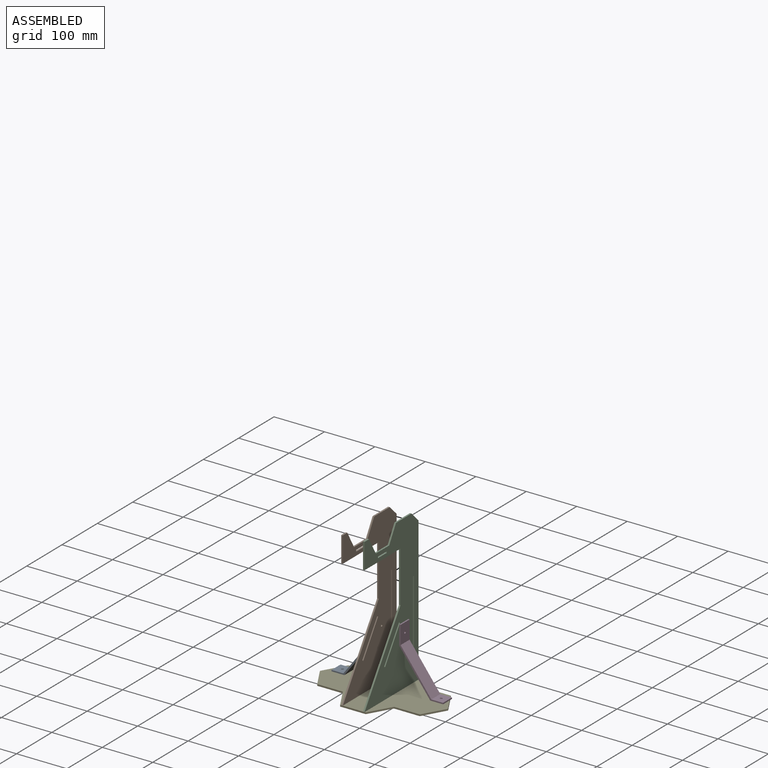
[diagram: assembled view]
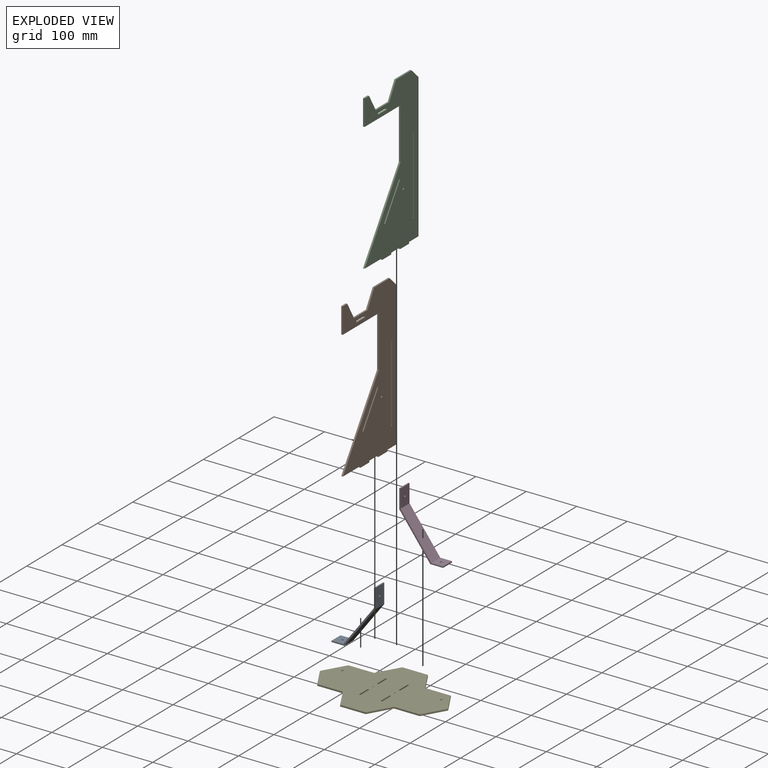
[diagram: exploded view]
GUIDED TOUR — MATED ASSEMBLY (Onshape document 4123c922d0677a790cdd288b, AutoMate assembly 4123c922d0677a790cdd288b_f559b893877737e25ff7922c_e95f32692bd4e4545a115b52_default)

This assembly has 5 components, labeled P0..P4 below (a component is one placed occurrence of a part; the same part can appear more than once), held together by 4 mates. A mate is a constraint between two components; its type names the relative motion it leaves free:
  FASTENED — locks the two components together rigidly (no relative motion).
Axis/direction vectors are unit vectors and 'through' points are millimeter coordinates, both in the assembly's world frame.

MATES
  1. FASTENED "Fastened 2": P2 <-> P4, direction (0.000, 0.000, -1.000) through (-218.53, -173.76, -148.30) mm
  2. FASTENED "Fastened 3": P3 <-> P4, direction (0.000, 0.000, -1.000) through (-142.33, -151.72, -148.30) mm
  3. FASTENED "Fastened 4": P0 <-> P4, direction (0.000, 0.000, -1.000) through (-337.91, -151.72, -148.30) mm
  4. FASTENED "Fastened 1": P1 <-> P4, direction (0.000, 0.000, -1.000) through (-261.71, -173.76, -148.30) mm

ASSEMBLY ORDER
  1. P4 — the base component [order verified]
  2. P0 [order verified]
  3. P3 [order verified]
  4. P1 [order verified]
  5. P2 [order verified]
Order-tag legend:
  [order verified] — this step's position reverses a verified removal order: the component was checked to insert without passing through the ones already placed.

Of the 5 components, 2 carry the full construction recipe — the FeatureScript program that regenerates the part's solid from scratch; the rest are supplied as boundary geometry only.
Each toured component is shown spotlighted twice — in the assembled view, then in the exploded view, where a leader line traces a displaced component back to its assembled socket (saturated green if recipe-attached, orange if geometry-only; every other component desaturated gray) — followed by its recipe or geometry summary and the mates that hold it.
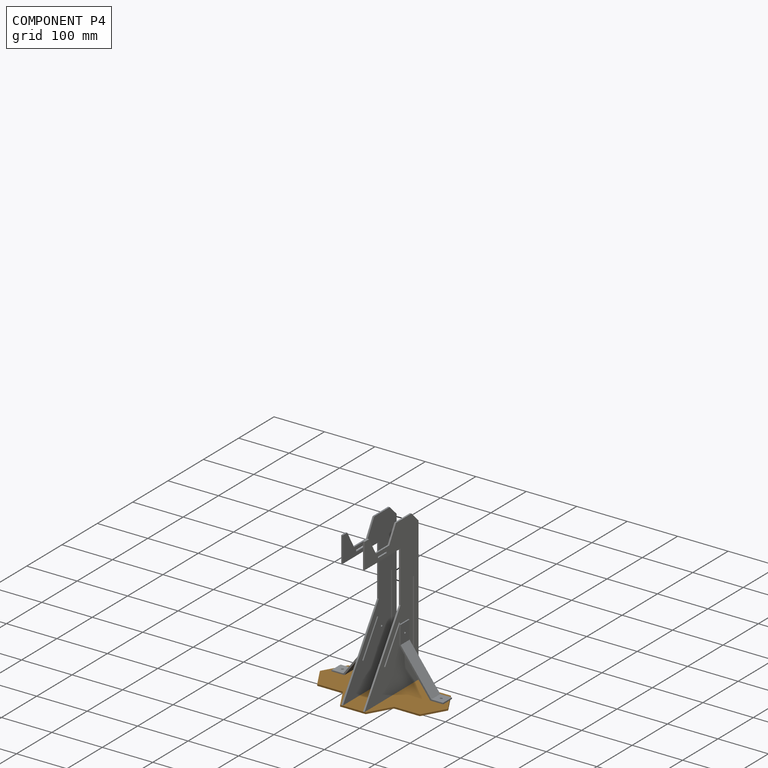
[diagram: component P4 — assembled]
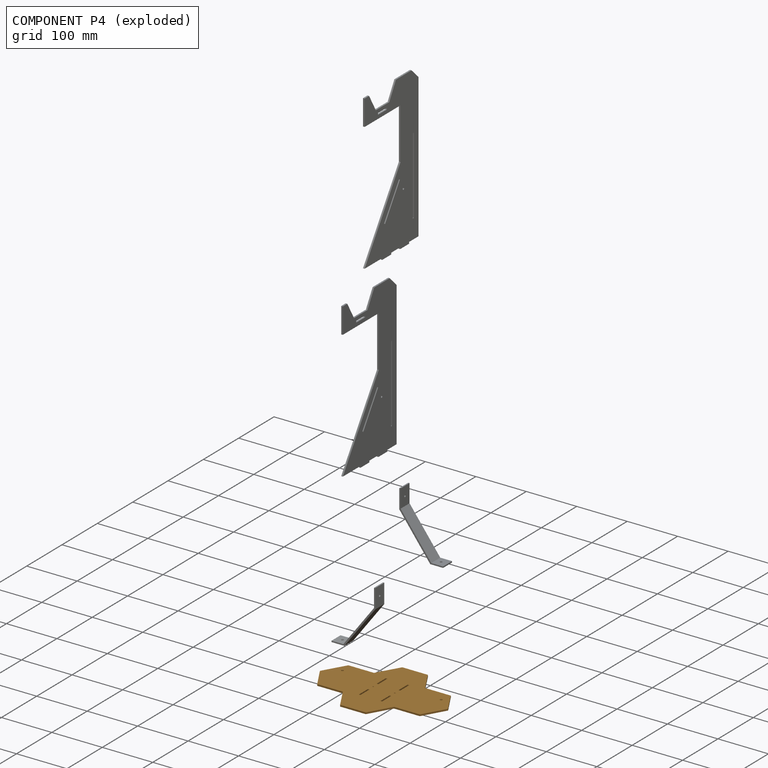
[diagram: component P4 — exploded]
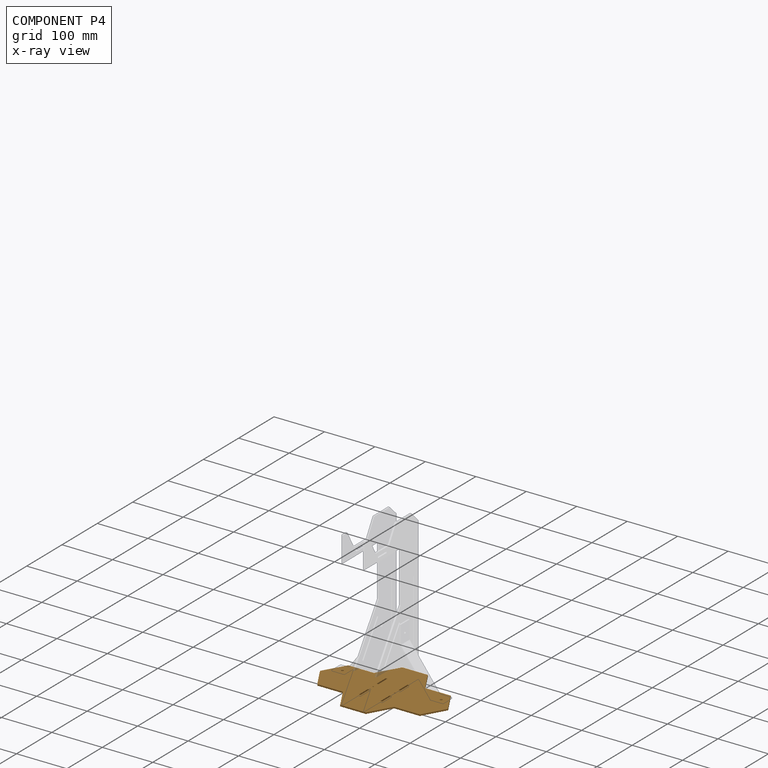
[diagram: component P4 — x-ray view]
COMPONENT P4 — geometry summary (no construction recipe available for this part):
  bounding box: 254.0 x 176.0 x 3.2 mm
  B-rep topology: 1 solid, 36 faces, 208 edges
  volume: 84001 mm^3 (59% of its bounding box)
  symmetry: 2-fold rotationally symmetric about the x axis; 2-fold rotationally symmetric about the y axis; 2-fold rotationally symmetric about the z axis; mirror-symmetric across its x mid-plane, y mid-plane, z mid-plane
Held by: FASTENED mate "Fastened 2" to P2; FASTENED mate "Fastened 3" to P3; FASTENED mate "Fastened 4" to P0; FASTENED mate "Fastened 1" to P1.
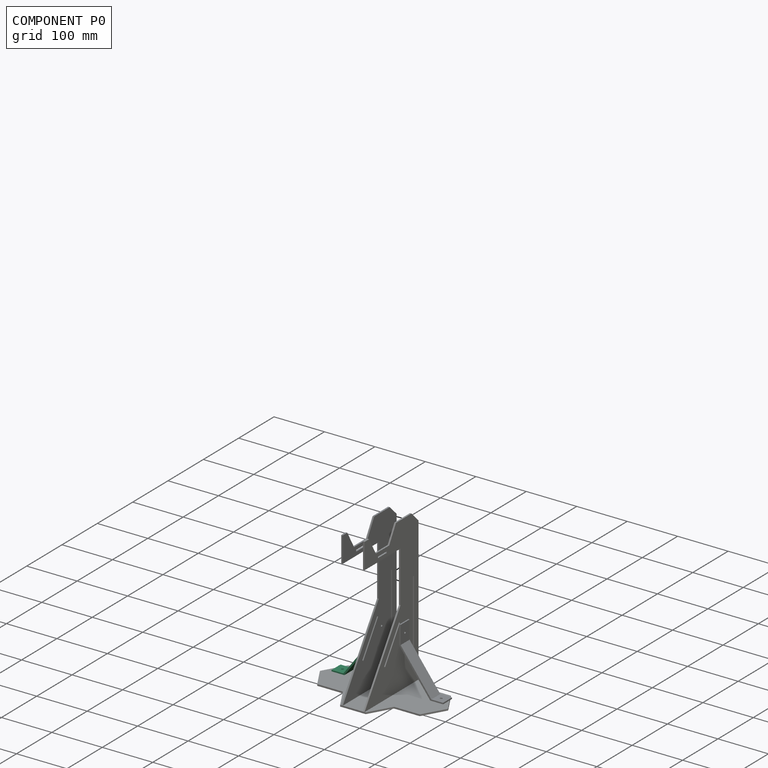
[diagram: component P0 — assembled]
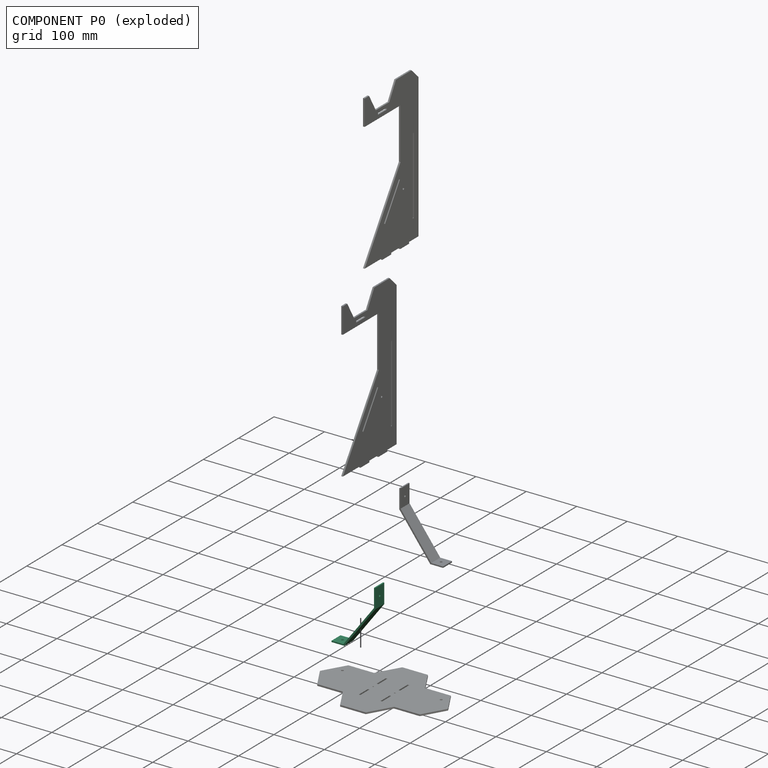
[diagram: component P0 — exploded]
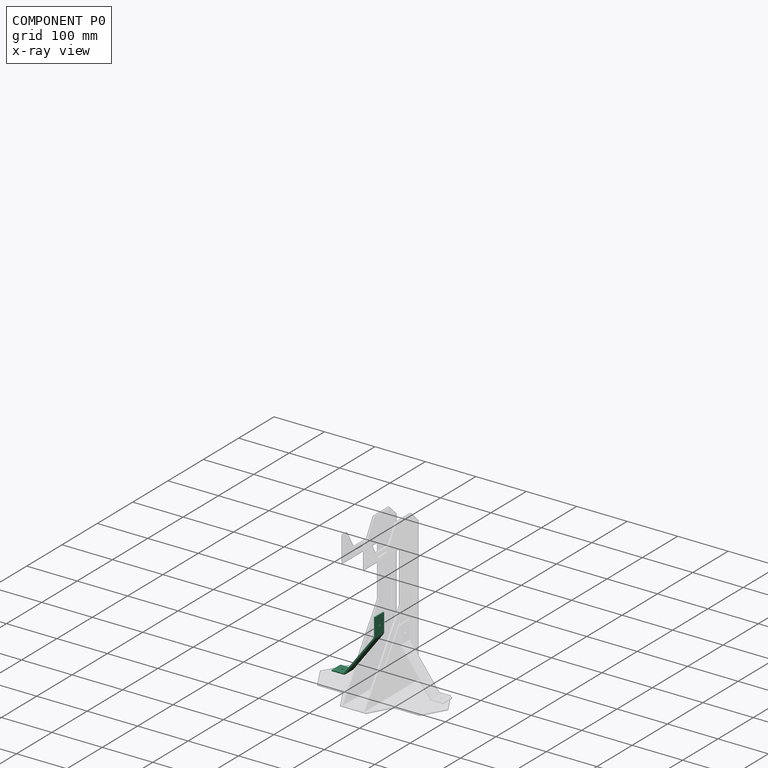
[diagram: component P0 — x-ray view]
COMPONENT P0 — recipe-attached (CADFS 00439002, mesh-verified: the recipe's output STEP matches this component's geometry to below the mesh-comparison resolution (tessellation chordal tolerance ~0.228 mm)).
Held by: FASTENED mate "Fastened 4" to P4.
Construction recipe (FeatureScript — the CAD program that rebuilds this solid; sketch coordinates are in the units given by the * unit suffixes, e.g. mm):

FeatureScript 1511;
import(path : "onshape/std/geometry.fs", version : "1511.0");
import(path : "onshape/std/common.fs", version : "1511.0");
const mm = millimeter;
const VERTEX = EntityType.VERTEX;
const EDGE = EntityType.EDGE;
const FACE = EntityType.FACE;
const BODY = EntityType.BODY;
function v(x, y){return vector(x, y);}
function OD(order){return orderDisambiguation(order);}
function OSD(set){return originalSetDisambiguation(set);}
function TD(topology){return topologyDisambiguation(topology);}
function TDD(query){return trueDependencyDisambiguation(query);}
function sQuery(a, b, c) {return sketchEntityQuery(a, b, c);}

annotation { "Feature Type Name" : "Feature", "Feature Type Description" : "" }
export const myFeature = defineFeature(function(context is Context, id is Id, definition is map)
    precondition{}
    {
        {
            var Q0;
            Q0=qCreatedBy(makeId("Front.planeOp"),FACE);
            var sketch = newSketch(context, id + "F0", { "sketchPlane" : qUnion([Q0])});
            skPoint(sketch, "E0.0.midPoint", {"position": v(-22.86, 0) * mm});
            skLineSegment(sketch, "E1", {"start": v(0, -30.48) * mm, "end": v(0, 30.48) * mm, "construction": true});
            skLineSegment(sketch, "E2.bottom", {"start": v(35.52, 16.45) * mm, "end": v(-66.68, 16.45) * mm});
            skLineSegment(sketch, "E2.top", {"start": v(35.52, 19.63) * mm, "end": v(-65.89, 19.63) * mm});
            skLineSegment(sketch, "E3", {"start": v(35.52, 16.45) * mm, "end": v(66, 39.31) * mm});
            skLineSegment(sketch, "E4", {"start": v(35.52, 19.63) * mm, "end": v(64.47, 41.34) * mm});
            skLineSegment(sketch, "E5", {"start": v(66, 39.31) * mm, "end": v(64.47, 41.34) * mm});
            skLineSegment(sketch, "E6", {"start": v(-66.68, 16.45) * mm, "end": v(-81.92, 36.77) * mm});
            skLineSegment(sketch, "E7", {"start": v(-65.89, 19.63) * mm, "end": v(-79.89, 38.3) * mm});
            skLineSegment(sketch, "E8", {"start": v(-81.92, 36.77) * mm, "end": v(-79.89, 38.3) * mm});
            skPoint(sketch, "E9", {"position": v(-72.89, 28.96) * mm});
            skPoint(sketch, "E10", {"position": v(50, 30.48) * mm});
            skPoint(sketch, "E11", {"position": v(-74.3, 26.61) * mm});
            skPoint(sketch, "E12", {"position": v(50.76, 27.88) * mm});
            skSolve(sketch);
        }
        {
            var Q0;
            Q0=makeQuery(id+"F0.imprint","IMPRINT",FACE,{"disambiguationData":[TD([[makeQuery(id+"F0.imprint","IMPRINT",EDGE,{"derivedFrom":sQuery(id+"F0.wireOp",EDGE,"E2.bottom")}),-1.0]])]});
            extrude(context, id + "F1", {"entities" : qUnion([Q0]), "depth" : 25.4 * mm, "offsetDistance" : 25.4 * mm});
        }
        {
            var Q0;
            Q0=makeQuery(id+"F1.opExtrude","SWEPT_FACE",FACE,{"disambiguationData":[OSD([sQuery(id+"F0.wireOp",EDGE,"E3")])]});
            var sketch = newSketch(context, id + "F2", { "sketchPlane" : qUnion([Q0])});
            skLineSegment(sketch, "E13", {"start": v(76.38, 12.7) * mm, "end": v(38.28, 12.7) * mm, "construction": true});
            skLineSegment(sketch, "E14", {"start": v(57.33, 25.4) * mm, "end": v(57.33, 0) * mm, "construction": true});
            skCircle(sketch, "E15", {"center": v(58.12, 12.7) * mm, "radius": 2.15 * mm});
            skSolve(sketch);
        }
        {
            var Q0;
            Q0=makeQuery(id+"F1.opExtrude","SWEPT_FACE",FACE,{"disambiguationData":[OSD([sQuery(id+"F0.wireOp",EDGE,"E6")])]});
            var sketch = newSketch(context, id + "F3", { "sketchPlane" : qUnion([Q0])});
            skLineSegment(sketch, "E16", {"start": v(12.7, 78.57) * mm, "end": v(12.7, 53.17) * mm, "construction": true});
            skLineSegment(sketch, "E17", {"start": v(0, 65.87) * mm, "end": v(25.4, 65.87) * mm, "construction": true});
            skCircle(sketch, "E18", {"center": v(12.7, 65.87) * mm, "radius": 2.15 * mm});
            skSolve(sketch);
        }
        {
            var Q0;
            Q0=makeQuery(id+"F2.imprint","IMPRINT",FACE,{"disambiguationData":[TD([[makeQuery(id+"F2.imprint","IMPRINT",EDGE,{"derivedFrom":sQuery(id+"F2.wireOp",EDGE,"E15")}),1.0]])]});
            extrude(context, id + "F4", {"entities" : qUnion([Q0]), "operationType" : NewBodyOperationType.REMOVE, "oppositeDirection" : true, "depth" : 25.4 * mm, "offsetDistance" : 25.4 * mm});
        }
        {
            var Q0;
            Q0=makeQuery(id+"F3.imprint","IMPRINT",FACE,{"disambiguationData":[TD([[makeQuery(id+"F3.imprint","IMPRINT",EDGE,{"derivedFrom":sQuery(id+"F3.wireOp",EDGE,"E18")}),1.0]])]});
            extrude(context, id + "F5", {"entities" : qUnion([Q0]), "operationType" : NewBodyOperationType.REMOVE, "oppositeDirection" : true, "depth" : 25.4 * mm, "offsetDistance" : 25.4 * mm});
        }
    });
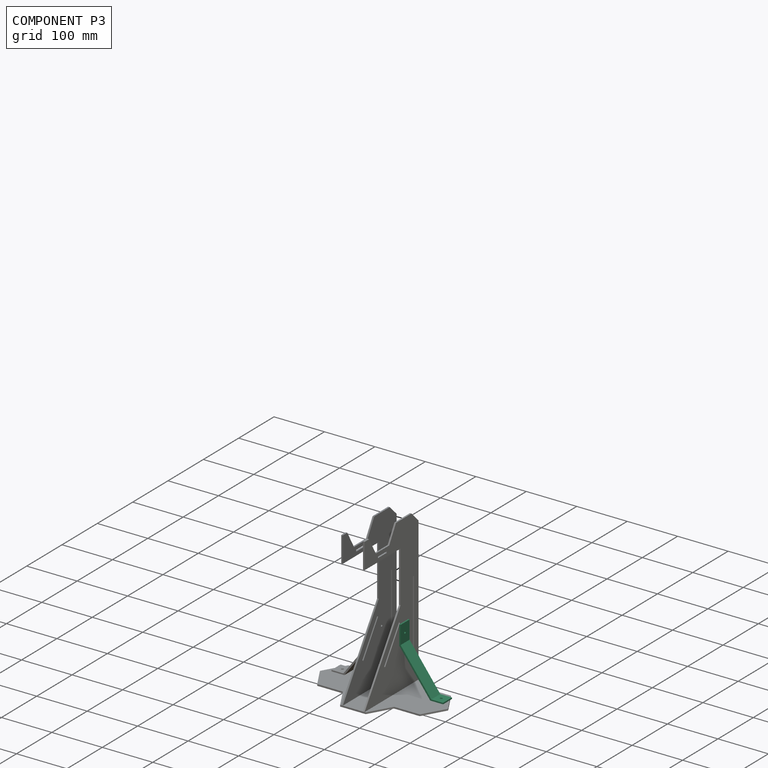
[diagram: component P3 — assembled]
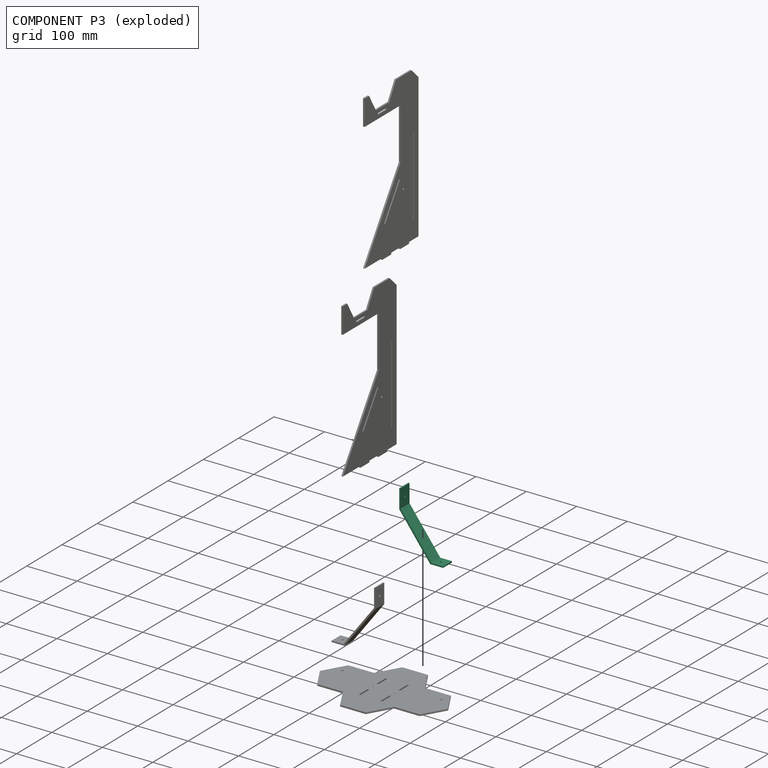
[diagram: component P3 — exploded]
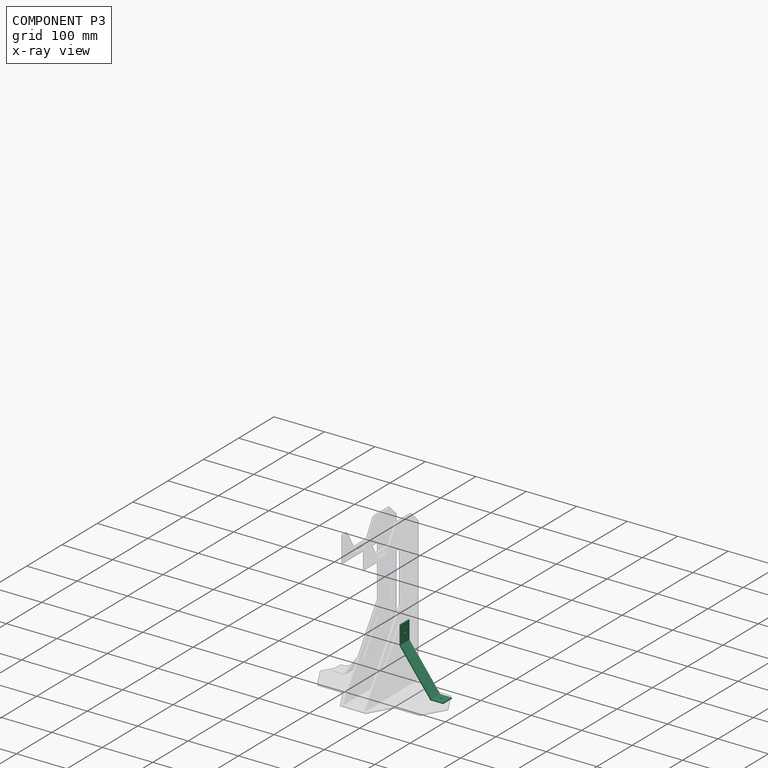
[diagram: component P3 — x-ray view]
COMPONENT P3 — same part as P0 (CADFS 00439002); its construction recipe is shown at P0.
Held by: FASTENED mate "Fastened 3" to P4.
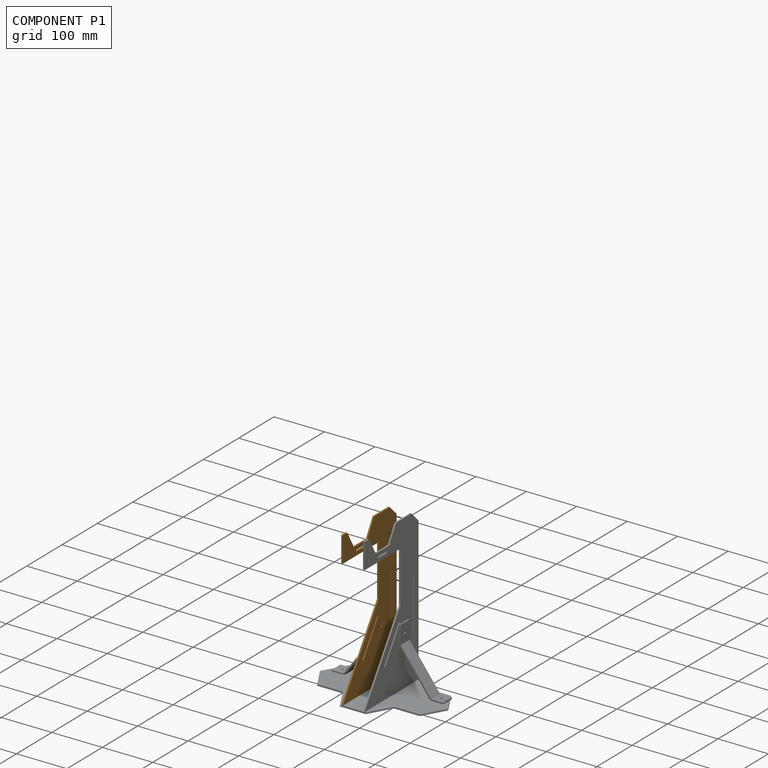
[diagram: component P1 — assembled]
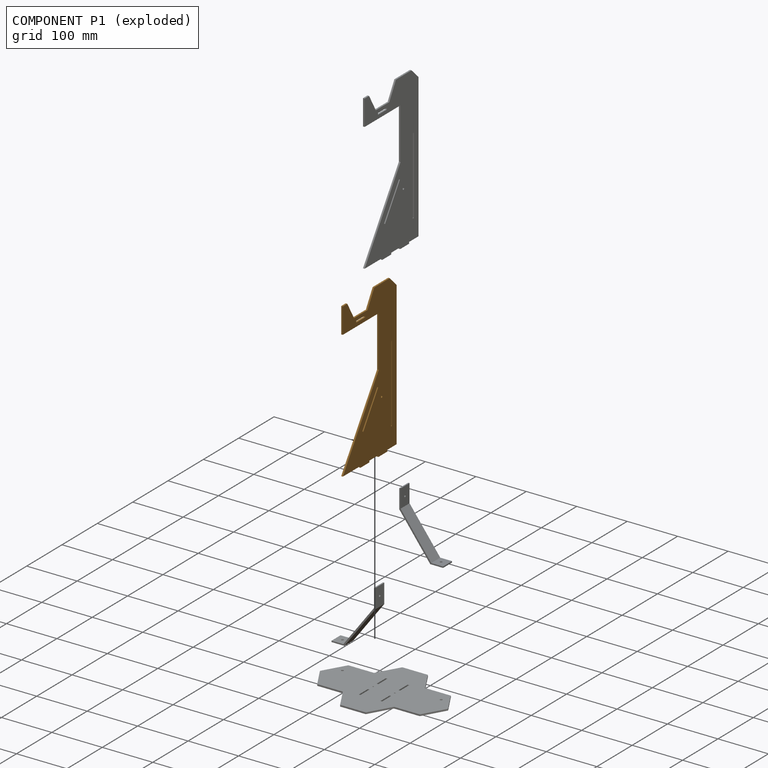
[diagram: component P1 — exploded]
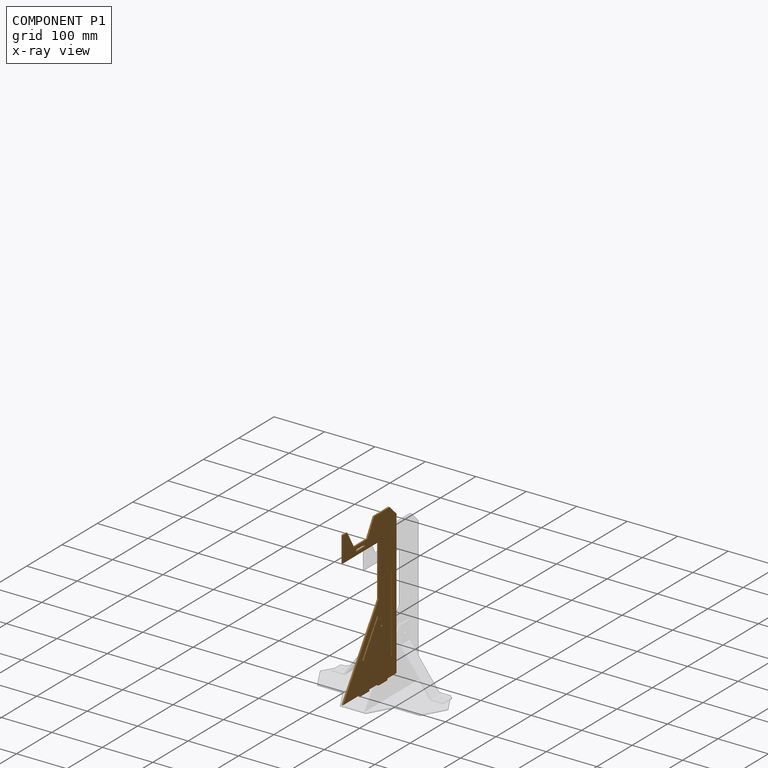
[diagram: component P1 — x-ray view]
COMPONENT P1 — geometry summary (no construction recipe available for this part):
  bounding box: 308.0 x 152.4 x 3.2 mm
  B-rep topology: 1 solid, 37 faces, 204 edges
  volume: 81427 mm^3 (55% of its bounding box)
  symmetry: mirror-symmetric across its y mid-plane
Held by: FASTENED mate "Fastened 1" to P4.
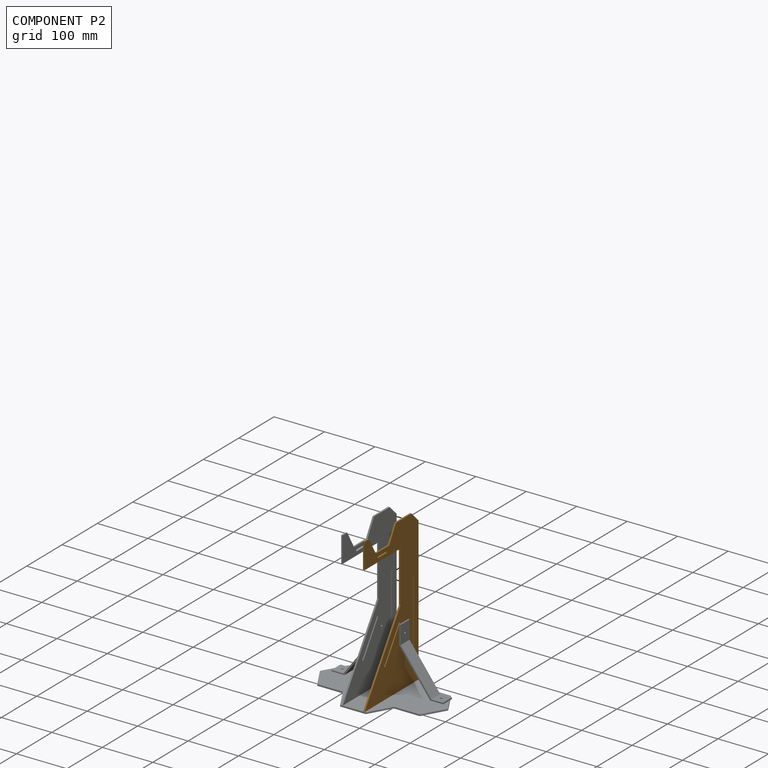
[diagram: component P2 — assembled]
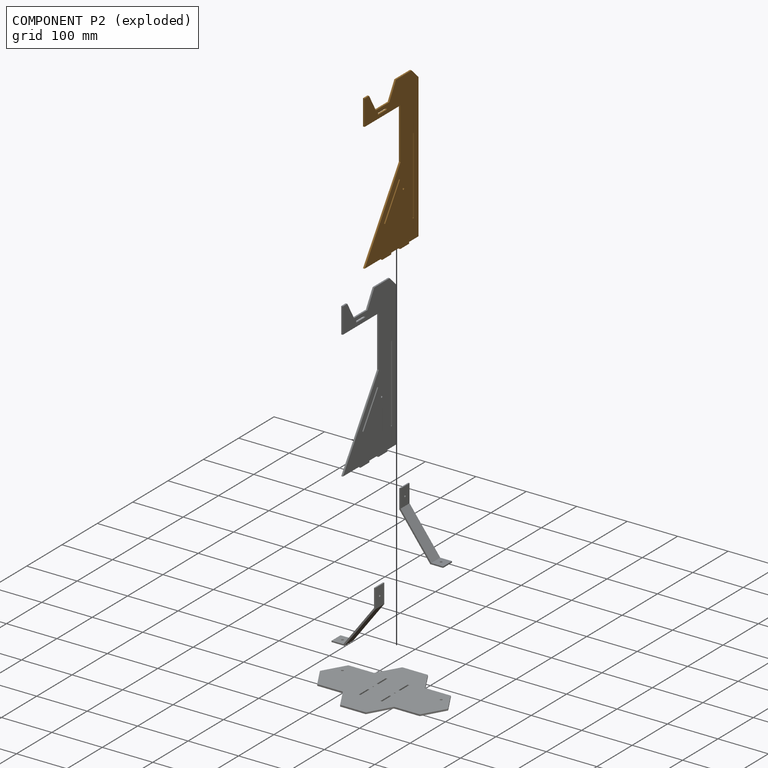
[diagram: component P2 — exploded]
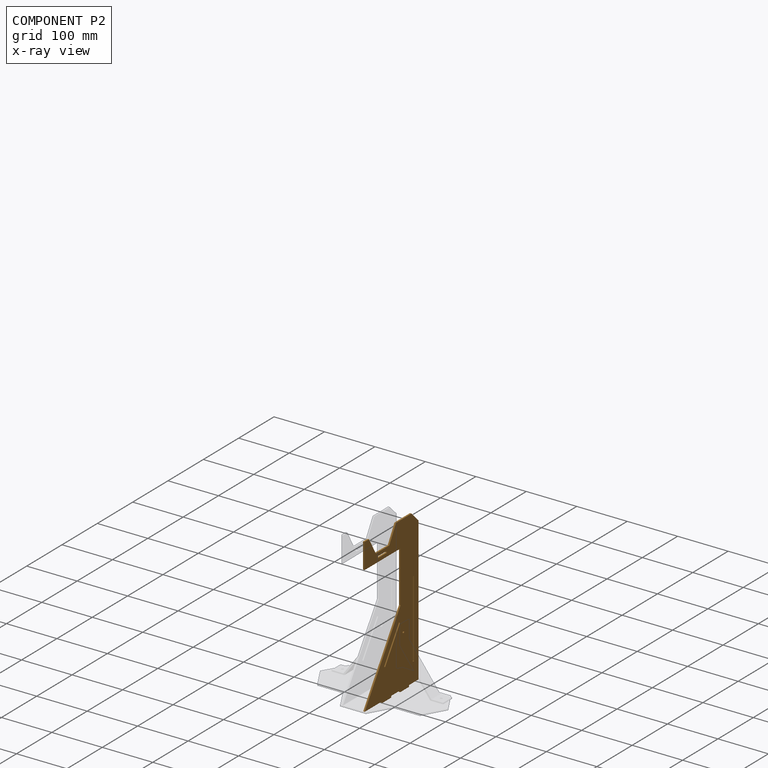
[diagram: component P2 — x-ray view]
COMPONENT P2 — geometry summary (no construction recipe available for this part):
  bounding box: 308.0 x 152.4 x 3.2 mm
  B-rep topology: 1 solid, 37 faces, 204 edges
  volume: 81427 mm^3 (55% of its bounding box)
  symmetry: mirror-symmetric across its y mid-plane
Held by: FASTENED mate "Fastened 2" to P4.
PROVENANCE & LICENSES
Assembly (occurrences, transforms, mates, per-part STEP geometry): AutoMate dataset, Zenodo record 7776208, CC0.
Construction recipes: CADFS (HuggingFace VladPyatov/CADFS, CC-BY-4.0, layered over the ABC dataset), FeatureScript reconstruction programs keyed by ABC model id.
Join: ABC meta listings map ABC model id -> Onshape documentId; within a shared document, parts are matched by geometric signature (bounding-box dims + volume at 0.1% relative tolerance, exact B-rep face/solid counts).
Verification: 2 of this assembly's 5 components carry a recipe attachment, and every attachment is mesh-verified: the CADFS STEP and the AutoMate member STEP were compared as meshes in their shared local frame (symmetric sampled-point-to-mesh distance); worst across the 2 attachments: below the mesh-comparison resolution (tessellation chordal tolerance ~0.228 mm) on a 152 mm part.
Renders: orthographic iso camera (az 35 / el 25); the floor grid conveys scale (grid pitch printed in each image; no ruler). In the exploded view each component is displaced by its stored offset vector: the offsets alone carry the explosion direction (mate normal/axis signs are not orientation cues and do not encode it), and separation distances are assigned per mate-chain, not proportionally to assembly-order depth.
